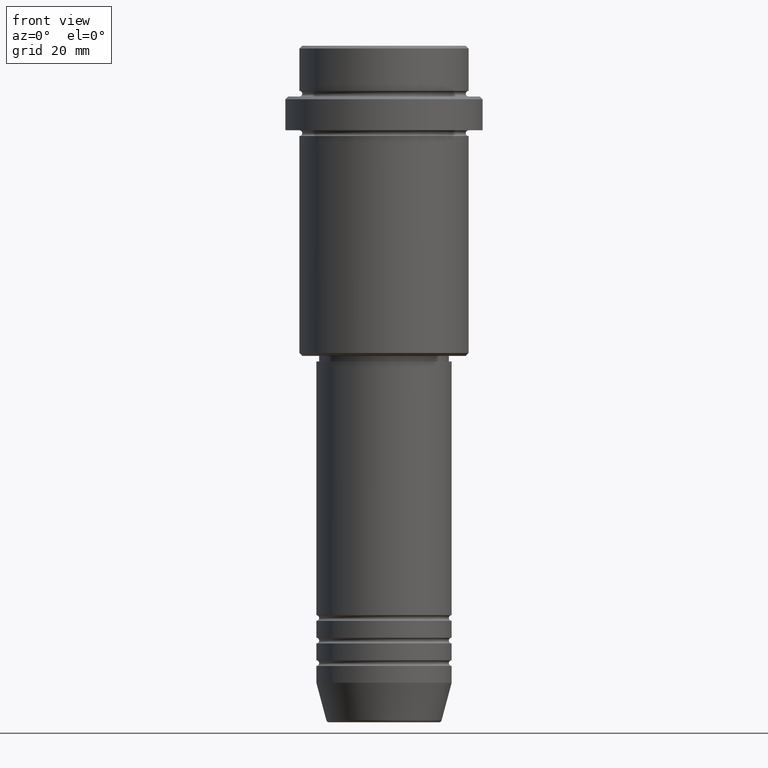
[diagram: clean part render]
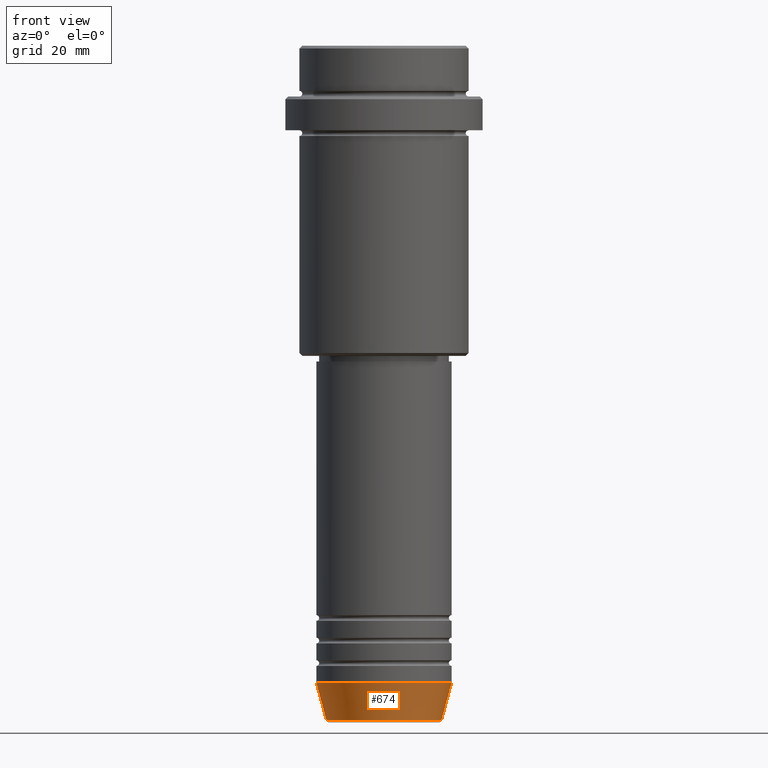
[diagram: same view with one face highlighted and labeled with its STEP entity id]
A machine part, front view. The second image highlights one B-rep face of the part: STEP entity #674.
In plain terms, the highlighted conical surface has half-angle 15 deg.
Its self-contained STEP definition (entity closure, byte-faithful):
#27 = LINE ( 'NONE', #751, #104 ) ;
#46 = DIRECTION ( 'NONE',  ( 0.2588190451025213501, 0.000000000000000000, 0.9659258262890680902 ) ) ;
#53 = CARTESIAN_POINT ( 'NONE',  ( 10.22365507213718949, 0.000000000000000000, -119.6294095225512564 ) ) ;
#62 = VERTEX_POINT ( 'NONE', #1180 ) ;
#84 = EDGE_CURVE ( 'NONE', #511, #862, #1377, .T. ) ;
#104 = VECTOR ( 'NONE', #46, 1000.000000000000000 ) ;
#201 = CARTESIAN_POINT ( 'NONE',  ( 0.000000000000000000, 0.000000000000000000, -113.0000000000000000 ) ) ;
#269 = CARTESIAN_POINT ( 'NONE',  ( 0.000000000000000000, 0.000000000000000000, -119.6294095225512564 ) ) ;
#275 = VECTOR ( 'NONE', #448, 1000.000000000000000 ) ;
#278 = DIRECTION ( 'NONE',  ( 1.000000000000000000, 0.000000000000000000, 0.000000000000000000 ) ) ;
#322 = CARTESIAN_POINT ( 'NONE',  ( 12.00000000000000000, 0.000000000000000000, -113.0000000000000000 ) ) ;
#443 = ORIENTED_EDGE ( 'NONE', *, *, #736, .F. ) ;
#448 = DIRECTION ( 'NONE',  ( -0.2588190451025213501, 3.169619151431772337E-17, 0.9659258262890680902 ) ) ;
#511 = VERTEX_POINT ( 'NONE', #962 ) ;
#522 = ORIENTED_EDGE ( 'NONE', *, *, #1273, .F. ) ;
#551 = ORIENTED_EDGE ( 'NONE', *, *, #988, .T. ) ;
#552 = CARTESIAN_POINT ( 'NONE',  ( 0.000000000000000000, 0.000000000000000000, -113.0000000000000000 ) ) ;
#648 = DIRECTION ( 'NONE',  ( -0.000000000000000000, -0.000000000000000000, 1.000000000000000000 ) ) ;
#674 = ADVANCED_FACE ( 'NONE', ( #761 ), #866, .T. ) ;
#676 = DIRECTION ( 'NONE',  ( 1.000000000000000000, 0.000000000000000000, 0.000000000000000000 ) ) ;
#736 = EDGE_CURVE ( 'NONE', #511, #62, #1006, .T. ) ;
#737 = DIRECTION ( 'NONE',  ( -0.000000000000000000, -0.000000000000000000, 1.000000000000000000 ) ) ;
#751 = CARTESIAN_POINT ( 'NONE',  ( 12.00000000000000000, 0.000000000000000000, -113.0000000000000000 ) ) ;
#754 = VERTEX_POINT ( 'NONE', #322 ) ;
#761 = FACE_OUTER_BOUND ( 'NONE', #956, .T. ) ;
#781 = ORIENTED_EDGE ( 'NONE', *, *, #84, .T. ) ;
#797 = CARTESIAN_POINT ( 'NONE',  ( -12.00000000000000000, 1.469576158976823947E-15, -113.0000000000000000 ) ) ;
#862 = VERTEX_POINT ( 'NONE', #53 ) ;
#866 = CONICAL_SURFACE ( 'NONE', #1196, 12.00000000000000000, 0.2617993877991500740 ) ;
#889 = DIRECTION ( 'NONE',  ( 1.000000000000000000, 0.000000000000000000, 0.000000000000000000 ) ) ;
#956 = EDGE_LOOP ( 'NONE', ( #443, #781, #551, #522 ) ) ;
#962 = CARTESIAN_POINT ( 'NONE',  ( -10.22365507213718949, 1.360806402472382744E-15, -119.6294095225512564 ) ) ;
#988 = EDGE_CURVE ( 'NONE', #862, #754, #27, .T. ) ;
#1006 = LINE ( 'NONE', #797, #275 ) ;
#1061 = AXIS2_PLACEMENT_3D ( 'NONE', #269, #737, #278 ) ;
#1139 = CIRCLE ( 'NONE', #1203, 12.00000000000000000 ) ;
#1180 = CARTESIAN_POINT ( 'NONE',  ( -12.00000000000000000, 1.469576158976823947E-15, -113.0000000000000000 ) ) ;
#1191 = DIRECTION ( 'NONE',  ( -0.000000000000000000, -0.000000000000000000, 1.000000000000000000 ) ) ;
#1196 = AXIS2_PLACEMENT_3D ( 'NONE', #201, #1191, #676 ) ;
#1203 = AXIS2_PLACEMENT_3D ( 'NONE', #552, #648, #889 ) ;
#1273 = EDGE_CURVE ( 'NONE', #62, #754, #1139, .T. ) ;
#1377 = CIRCLE ( 'NONE', #1061, 10.22365507213718949 ) ;